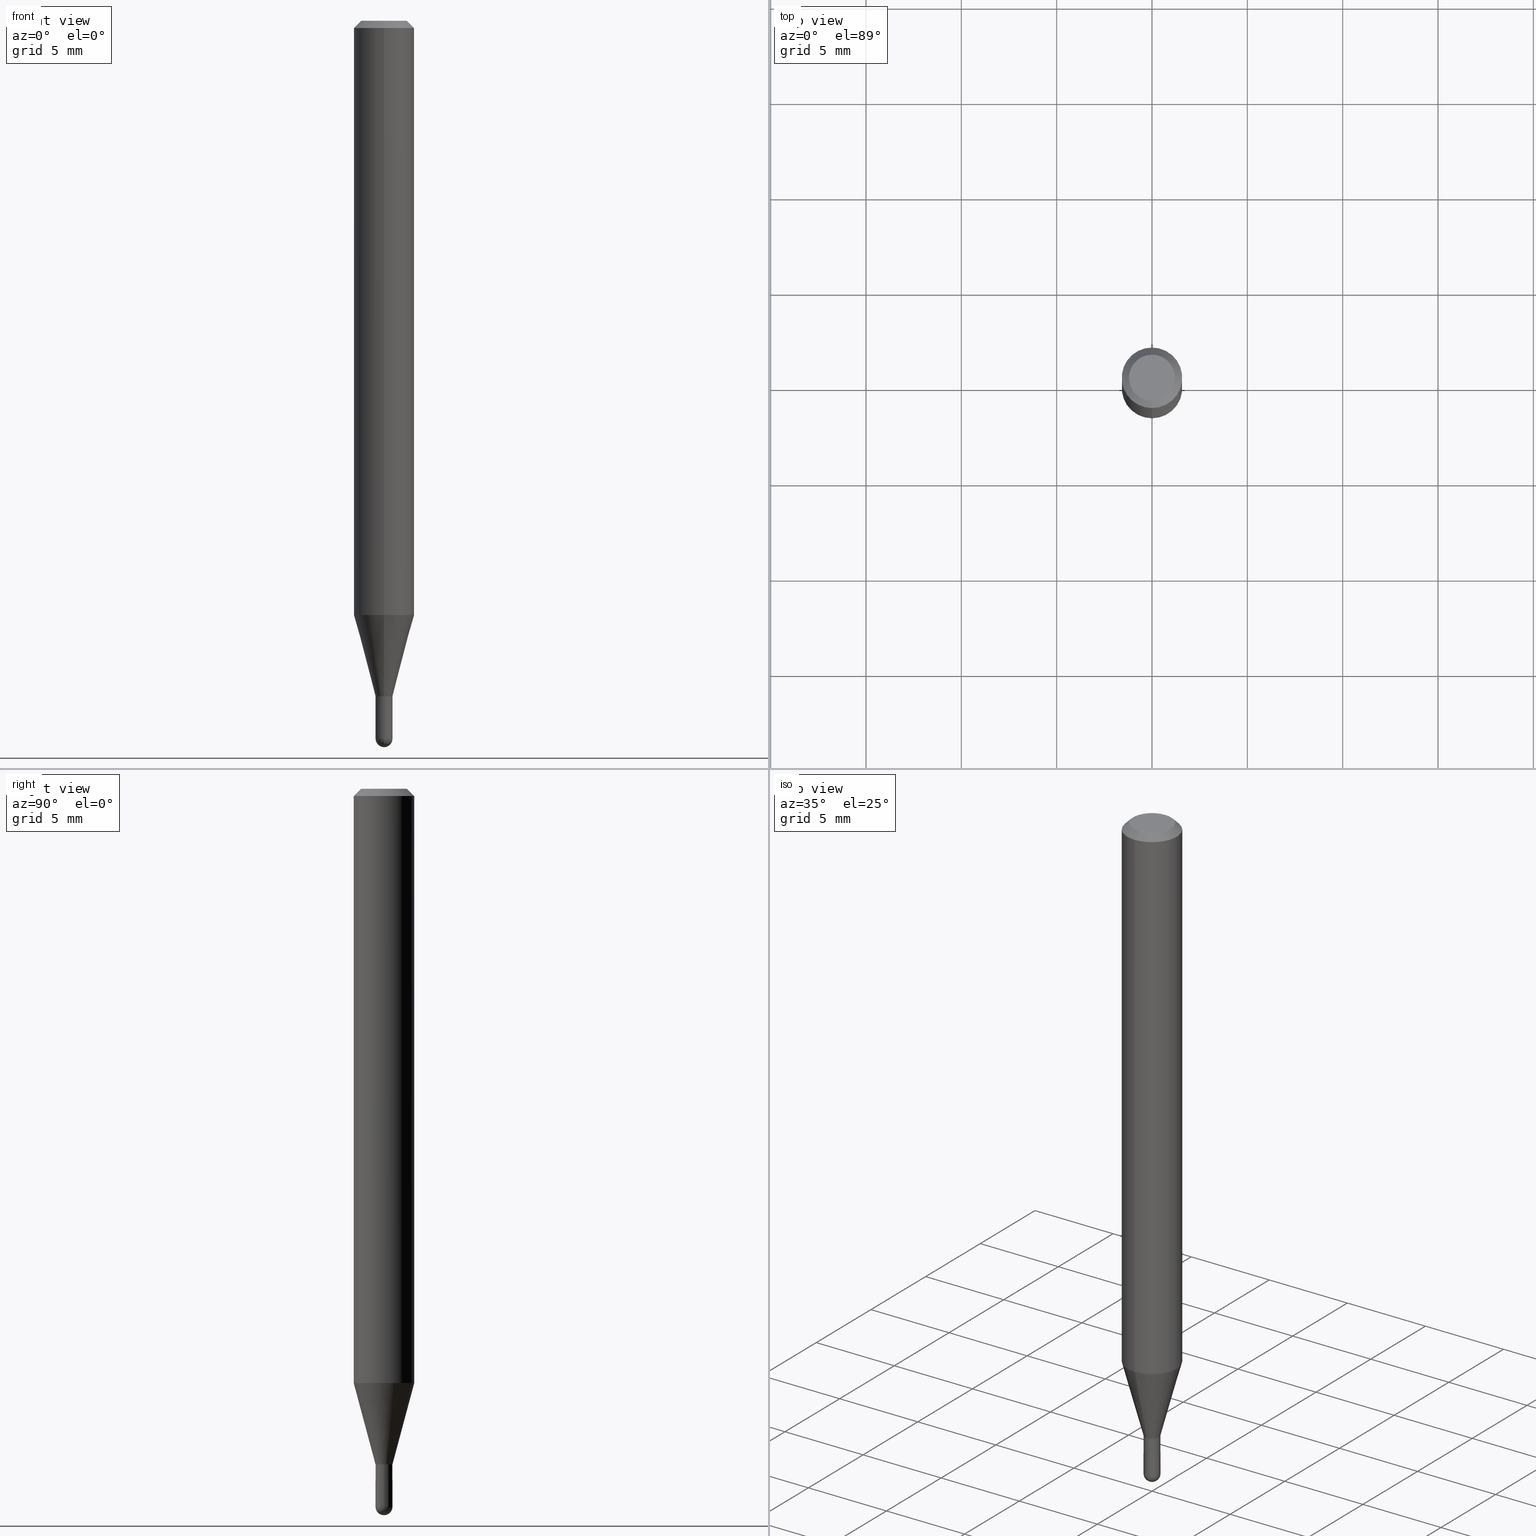
[diagram: canonical four-view strip — front | top / right | iso, engineering-drawing reading convention]
A machine part, canonical four-view strip (front | top / right | iso — engineering-drawing reading convention). The complete STEP part file that produces these views, byte-faithful:
ISO-10303-21;
HEADER;
FILE_DESCRIPTION (( 'STEP AP203' ),
    '1' );
FILE_NAME ('01458.STEP',
    '2024-03-07T21:09:51',
    ( '' ),
    ( '' ),
    'SwSTEP 2.0',
    'SolidWorks 2023',
    '' );
FILE_SCHEMA (( 'CONFIG_CONTROL_DESIGN' ));
ENDSEC;

DATA;
#1 = EDGE_LOOP ( 'NONE', ( #16, #333, #119, #501 ) ) ;
#2 = CARTESIAN_POINT ( 'NONE',  ( 4.364351673553919652E-16, 0.06249999999999995143, -0.01500000000000022669 ) ) ;
#3 = EDGE_CURVE ( 'NONE', #283, #385, #195, .T. ) ;
#4 = CARTESIAN_POINT ( 'NONE',  ( 1.207922650792511585E-16, 0.01699999999999513012, -1.395000000000000018 ) ) ;
#5 = DIRECTION ( 'NONE',  ( -6.982962677686266711E-15, -1.000000000000000000, 0.000000000000000000 ) ) ;
#6 = EDGE_LOOP ( 'NONE', ( #383, #317 ) ) ;
#7 = EDGE_LOOP ( 'NONE', ( #244, #122 ) ) ;
#8 = DIRECTION ( 'NONE',  ( 6.982962677686265922E-15, 1.000000000000000000, -3.483106191921935554E-15 ) ) ;
#9 = EDGE_CURVE ( 'NONE', #385, #140, #237, .T. ) ;
#10 = VERTEX_POINT ( 'NONE', #470 ) ;
#11 = CARTESIAN_POINT ( 'NONE',  ( 1.243449787580543003E-16, 0.01749999999999489464, -1.482500000000000373 ) ) ;
#12 = FACE_OUTER_BOUND ( 'NONE', #346, .T. ) ;
#13 = CARTESIAN_POINT ( 'NONE',  ( 1.225686219186511394E-16, 0.01699999999999513012, -1.395000000000000018 ) ) ;
#14 = CIRCLE ( 'NONE', #217, 0.06250000000000000000 ) ;
#15 = DIRECTION ( 'NONE',  ( -2.445468806185136597E-29, 3.491481338843145583E-15, 1.000000000000000000 ) ) ;
#16 = ORIENTED_EDGE ( 'NONE', *, *, #50, .F. ) ;
#17 = AXIS2_PLACEMENT_3D ( 'NONE', #47, #314, #55 ) ;
#18 = DIRECTION ( 'NONE',  ( -2.445457948483658713E-29, 3.491496887689643941E-15, 1.000000000000000000 ) ) ;
#19 = CARTESIAN_POINT ( 'NONE',  ( 2.842170943040719798E-16, 0.01749999999999505770, -1.395000000000000018 ) ) ;
#20 = DIRECTION ( 'NONE',  ( 1.000000000000000000, -7.105427357601001070E-15, 4.926315508542082329E-29 ) ) ;
#21 = LOCAL_TIME ( 16, 9, 51.00000000000000000, #310 ) ;
#22 = DIRECTION ( 'NONE',  ( -6.982962677686265133E-15, -1.000000000000000000, 0.000000000000000000 ) ) ;
#23 = EDGE_CURVE ( 'NONE', #425, #508, #240, .T. ) ;
#24 = EDGE_LOOP ( 'NONE', ( #313, #266, #479, #214 ) ) ;
#25 = CARTESIAN_POINT ( 'NONE',  ( 3.623910964163401181E-29, -5.178264216733472029E-15, -1.482500000000000151 ) ) ;
#26 = CARTESIAN_POINT ( 'NONE',  ( -4.364351673553912750E-16, -0.06250000000000005551, -0.01499999999999979128 ) ) ;
#27 = PRODUCT ( '01458', '01458', '', ( #197 ) ) ;
#28 = CIRCLE ( 'NONE', #213, 0.01749999999999992534 ) ;
#29 = APPLICATION_CONTEXT ( 'configuration controlled 3d designs of mechanical parts and assemblies' ) ;
#30 = DATE_TIME_ROLE ( 'creation_date' ) ;
#31 = EDGE_LOOP ( 'NONE', ( #85, #138 ) ) ;
#32 = EDGE_CURVE ( 'NONE', #320, #425, #28, .T. ) ;
#33 = ORIENTED_EDGE ( 'NONE', *, *, #431, .F. ) ;
#34 = PERSON_AND_ORGANIZATION ( #279, #79 ) ;
#35 = CIRCLE ( 'NONE', #441, 0.01750000000000000167 ) ;
#36 = EDGE_LOOP ( 'NONE', ( #308, #70, #286, #113, #73 ) ) ;
#37 = APPROVAL_DATE_TIME ( #387, #483 ) ;
#38 = DATE_AND_TIME ( #506, #147 ) ;
#39 = ADVANCED_FACE ( 'NONE', ( #312 ), #311, .T. ) ;
#40 = ORIENTED_EDGE ( 'NONE', *, *, #276, .T. ) ;
#41 = CARTESIAN_POINT ( 'NONE',  ( 1.243449787580511203E-16, 0.01749999999999505770, -1.395000000000000018 ) ) ;
#42 = ORIENTED_EDGE ( 'NONE', *, *, #32, .F. ) ;
#43 = DIRECTION ( 'NONE',  ( -6.982962677686266711E-15, -1.000000000000000000, 3.491496887689644335E-15 ) ) ;
#44 = CIRCLE ( 'NONE', #104, 0.01750000000000000167 ) ;
#45 = EDGE_CURVE ( 'NONE', #163, #145, #179, .T. ) ;
#46 = DIRECTION ( 'NONE',  ( 1.000000000000000000, -6.982962677686248567E-15, 0.000000000000000000 ) ) ;
#47 = CARTESIAN_POINT ( 'NONE',  ( 3.668186922725490346E-31, -5.237245331534468844E-17, -0.01500000000000000812 ) ) ;
#48 = EDGE_LOOP ( 'NONE', ( #175, #322, #76, #429 ) ) ;
#49 = LINE ( 'NONE', #360, #328 ) ;
#50 = EDGE_CURVE ( 'NONE', #385, #283, #475, .T. ) ;
#51 = CARTESIAN_POINT ( 'NONE',  ( 3.668186922725490346E-31, -5.237245331534468844E-17, -0.01500000000000000812 ) ) ;
#52 = LOCAL_TIME ( 16, 9, 51.00000000000000000, #232 ) ;
#53 = DIRECTION ( 'NONE',  ( -2.445468806185136597E-29, 3.491481338843145583E-15, 1.000000000000000000 ) ) ;
#54 = DIRECTION ( 'NONE',  ( -6.982962677686265922E-15, -1.000000000000000000, 3.491496887689643941E-15 ) ) ;
#55 = DIRECTION ( 'NONE',  ( 6.982962677686265922E-15, 1.000000000000000000, -3.483106191921935554E-15 ) ) ;
#56 = CIRCLE ( 'NONE', #364, 0.06250000000000000000 ) ;
#57 = DIRECTION ( 'NONE',  ( -2.445468806185136877E-29, 3.491481338843145188E-15, 1.000000000000000000 ) ) ;
#58 = DIRECTION ( 'NONE',  ( -2.445457948483658713E-29, 3.491496887689643941E-15, 1.000000000000000000 ) ) ;
#59 = CIRCLE ( 'NONE', #82, 0.01749999999999992534 ) ;
#60 = EDGE_CURVE ( 'NONE', #10, #199, #35, .T. ) ;
#61 = CYLINDRICAL_SURFACE ( 'NONE', #128, 0.06250000000000000000 ) ;
#62 = AXIS2_PLACEMENT_3D ( 'NONE', #330, #187, #143 ) ;
#63 = DIRECTION ( 'NONE',  ( -2.445457948483658713E-29, 3.491496887689643941E-15, 1.000000000000000000 ) ) ;
#64 = CARTESIAN_POINT ( 'NONE',  ( -1.222018468594739172E-16, -0.01750000000000525094, -1.482500000000000373 ) ) ;
#65 = FACE_OUTER_BOUND ( 'NONE', #234, .T. ) ;
#66 = ADVANCED_FACE ( 'NONE', ( #206 ), #350, .T. ) ;
#67 = ORIENTED_EDGE ( 'NONE', *, *, #413, .F. ) ;
#68 = FACE_OUTER_BOUND ( 'NONE', #48, .T. ) ;
#69 = COORDINATED_UNIVERSAL_TIME_OFFSET ( 5, 0, .BEHIND. ) ;
#70 = ORIENTED_EDGE ( 'NONE', *, *, #309, .T. ) ;
#71 = VECTOR ( 'NONE', #365, 39.37007874015748143 ) ;
#72 = DATE_TIME_ROLE ( 'classification_date' ) ;
#73 = ORIENTED_EDGE ( 'NONE', *, *, #60, .F. ) ;
#74 = DIRECTION ( 'NONE',  ( 1.000000000000000000, 0.000000000000000000, 0.000000000000000000 ) ) ;
#75 = APPROVAL_ROLE ( '' ) ;
#76 = ORIENTED_EDGE ( 'NONE', *, *, #229, .F. ) ;
#77 = CC_DESIGN_DATE_AND_TIME_ASSIGNMENT ( #38, #30, ( #165 ) ) ;
#78 = VERTEX_POINT ( 'NONE', #242 ) ;
#79 = ORGANIZATION ( 'UNSPECIFIED', 'UNSPECIFIED', '' ) ;
#80 = ADVANCED_FACE ( 'NONE', ( #92 ), #204, .T. ) ;
#81 = ORIENTED_EDGE ( 'NONE', *, *, #297, .T. ) ;
#82 = AXIS2_PLACEMENT_3D ( 'NONE', #304, #371, #188 ) ;
#83 = VERTEX_POINT ( 'NONE', #327 ) ;
#84 = DIRECTION ( 'NONE',  ( 1.000000000000000000, -6.982962677686248567E-15, 0.000000000000000000 ) ) ;
#85 = ORIENTED_EDGE ( 'NONE', *, *, #3, .T. ) ;
#86 = AXIS2_PLACEMENT_3D ( 'NONE', #452, #109, #262 ) ;
#87 = CARTESIAN_POINT ( 'NONE',  ( 3.411413838134704016E-29, -4.870638158327054133E-15, -1.395000000000000018 ) ) ;
#88 = VERTEX_POINT ( 'NONE', #293 ) ;
#89 = CARTESIAN_POINT ( 'NONE',  ( 3.625407505169465812E-29, -5.176121084834964763E-15, -1.482500000000000373 ) ) ;
#90 = EDGE_CURVE ( 'NONE', #305, #140, #449, .T. ) ;
#91 = CARTESIAN_POINT ( 'NONE',  ( 3.668186922725490346E-31, -5.237245331534468844E-17, -0.01500000000000000812 ) ) ;
#92 = FACE_OUTER_BOUND ( 'NONE', #460, .T. ) ;
#93 = CIRCLE ( 'NONE', #184, 0.01750000000000000167 ) ;
#94 = VECTOR ( 'NONE', #444, 39.37007874015748143 ) ;
#95 = AXIS2_PLACEMENT_3D ( 'NONE', #478, #289, #482 ) ;
#96 = APPLICATION_CONTEXT ( 'configuration controlled 3d designs of mechanical parts and assemblies' ) ;
#97 = FACE_OUTER_BOUND ( 'NONE', #367, .T. ) ;
#98 = LINE ( 'NONE', #256, #511 ) ;
#99 = CARTESIAN_POINT ( 'NONE',  ( -4.364351673553916201E-16, -0.06250000000000000000, 2.182185554806027463E-16 ) ) ;
#100 = EDGE_CURVE ( 'NONE', #425, #320, #59, .T. ) ;
#101 = FACE_OUTER_BOUND ( 'NONE', #24, .T. ) ;
#102 = VECTOR ( 'NONE', #111, 39.37007874015748143 ) ;
#103 = CARTESIAN_POINT ( 'NONE',  ( 0.000000000000000000, 0.000000000000000000, 0.000000000000000000 ) ) ;
#104 = AXIS2_PLACEMENT_3D ( 'NONE', #141, #53, #442 ) ;
#105 = DIRECTION ( 'NONE',  ( 1.000000000000000000, -6.982962677686248567E-15, 0.000000000000000000 ) ) ;
#106 = EDGE_CURVE ( 'NONE', #88, #78, #457, .T. ) ;
#107 = DIRECTION ( 'NONE',  ( -1.000000000000000000, 6.982962677686265922E-15, -4.876176775795935793E-29 ) ) ;
#108 = AXIS2_PLACEMENT_3D ( 'NONE', #131, #249, #284 ) ;
#109 = DIRECTION ( 'NONE',  ( -2.445457948483658713E-29, 3.491496887689643941E-15, 1.000000000000000000 ) ) ;
#110 = PERSON_AND_ORGANIZATION_ROLE ( 'creator' ) ;
#111 = DIRECTION ( 'NONE',  ( -4.937700262164674260E-15, -0.7071067811865632269, 0.7071067811865319186 ) ) ;
#112 = AXIS2_PLACEMENT_3D ( 'NONE', #471, #169, #43 ) ;
#113 = ORIENTED_EDGE ( 'NONE', *, *, #435, .T. ) ;
#114 = DATE_AND_TIME ( #345, #52 ) ;
#115 = VERTEX_POINT ( 'NONE', #267 ) ;
#116 = LOCAL_TIME ( 16, 9, 51.00000000000000000, #424 ) ;
#117 = DIRECTION ( 'NONE',  ( -6.982962677686265922E-15, -1.000000000000000000, 0.000000000000000000 ) ) ;
#118 = CALENDAR_DATE ( 2024, 7, 3 ) ;
#119 = ORIENTED_EDGE ( 'NONE', *, *, #254, .T. ) ;
#120 = ADVANCED_FACE ( 'NONE', ( #264 ), #370, .F. ) ;
#121 = ORIENTED_EDGE ( 'NONE', *, *, #297, .F. ) ;
#122 = ORIENTED_EDGE ( 'NONE', *, *, #60, .T. ) ;
#123 = APPROVAL_DATE_TIME ( #494, #127 ) ;
#124 = CARTESIAN_POINT ( 'NONE',  ( 3.623910964163401181E-29, -5.178264216733472029E-15, -1.482500000000000151 ) ) ;
#125 = ORIENTED_EDGE ( 'NONE', *, *, #334, .F. ) ;
#126 = MANIFOLD_SOLID_BREP ( 'Body-Move/Copy2[1]', #392 ) ;
#127 = APPROVAL ( #164, 'UNSPECIFIED' ) ;
#128 = AXIS2_PLACEMENT_3D ( 'NONE', #225, #324, #54 ) ;
#129 = CARTESIAN_POINT ( 'NONE',  ( -3.773273898774340269E-16, -0.04749999999999999362, 1.569865211436356637E-16 ) ) ;
#130 = CARTESIAN_POINT ( 'NONE',  ( 3.411428984628265351E-29, -4.870616467686188228E-15, -1.395000000000000018 ) ) ;
#131 = CARTESIAN_POINT ( 'NONE',  ( 0.000000000000000000, 0.000000000000000000, 0.000000000000000000 ) ) ;
#132 = DIRECTION ( 'NONE',  ( -2.445457948483658713E-29, 3.491496887689643941E-15, 1.000000000000000000 ) ) ;
#133 = VERTEX_POINT ( 'NONE', #192 ) ;
#134 = FACE_OUTER_BOUND ( 'NONE', #36, .T. ) ;
#135 = FACE_OUTER_BOUND ( 'NONE', #271, .T. ) ;
#136 = AXIS2_PLACEMENT_3D ( 'NONE', #326, #63, #301 ) ;
#137 = CC_DESIGN_PERSON_AND_ORGANIZATION_ASSIGNMENT ( #263, #228, ( #219 ) ) ;
#138 = ORIENTED_EDGE ( 'NONE', *, *, #50, .T. ) ;
#139 = FACE_OUTER_BOUND ( 'NONE', #355, .T. ) ;
#140 = VERTEX_POINT ( 'NONE', #26 ) ;
#141 = CARTESIAN_POINT ( 'NONE',  ( 3.625407505169465812E-29, -5.176121084834964763E-15, -1.482500000000000373 ) ) ;
#142 = CIRCLE ( 'NONE', #415, 0.01750000000000014738 ) ;
#143 = DIRECTION ( 'NONE',  ( -6.982962677686265922E-15, -1.000000000000000000, 3.483106191921935554E-15 ) ) ;
#144 = DIRECTION ( 'NONE',  ( 1.000000000000000000, -6.982962677686248567E-15, 0.000000000000000000 ) ) ;
#145 = VERTEX_POINT ( 'NONE', #183 ) ;
#146 = EDGE_CURVE ( 'NONE', #300, #10, #340, .T. ) ;
#147 = LOCAL_TIME ( 16, 9, 51.00000000000000000, #69 ) ;
#148 = AXIS2_PLACEMENT_3D ( 'NONE', #171, #215, #323 ) ;
#149 = DIRECTION ( 'NONE',  ( 7.105427357601000281E-15, 1.000000000000000000, 0.000000000000000000 ) ) ;
#150 = DIRECTION ( 'NONE',  ( -6.982962677686265922E-15, -1.000000000000000000, 0.000000000000000000 ) ) ;
#151 = DIRECTION ( 'NONE',  ( -2.445457948483658713E-29, 3.491496887689643941E-15, 1.000000000000000000 ) ) ;
#152 = DIRECTION ( 'NONE',  ( -6.982962677686266711E-15, -1.000000000000000000, 0.000000000000000000 ) ) ;
#153 = DIRECTION ( 'NONE',  ( 5.024295867788190974E-15, 0.7071067811865681119, 0.7071067811865270336 ) ) ;
#154 = CIRCLE ( 'NONE', #389, 0.01750000000000000167 ) ;
#155 = AXIS2_PLACEMENT_3D ( 'NONE', #292, #362, #182 ) ;
#156 = SECURITY_CLASSIFICATION_LEVEL ( 'unclassified' ) ;
#157 = DIRECTION ( 'NONE',  ( -6.982962677686266711E-15, -1.000000000000000000, 3.491496887689644335E-15 ) ) ;
#158 = PERSON_AND_ORGANIZATION ( #279, #79 ) ;
#159 = EDGE_CURVE ( 'NONE', #115, #238, #142, .T. ) ;
#160 = APPROVAL_STATUS ( 'not_yet_approved' ) ;
#161 = AXIS2_PLACEMENT_3D ( 'NONE', #259, #211, #302 ) ;
#162 =( NAMED_UNIT ( * ) PLANE_ANGLE_UNIT ( ) SI_UNIT ( $, .RADIAN. ) );
#163 = VERTEX_POINT ( 'NONE', #64 ) ;
#164 = APPROVAL_STATUS ( 'not_yet_approved' ) ;
#165 = PRODUCT_DEFINITION ( 'UNKNOWN', '', #219, #498 ) ;
#166 = DIRECTION ( 'NONE',  ( 1.000000000000000000, -6.982962677686265922E-15, 4.876176775795936353E-29 ) ) ;
#167 = LOCAL_TIME ( 16, 9, 51.00000000000000000, #496 ) ;
#168 = LINE ( 'NONE', #4, #432 ) ;
#169 = DIRECTION ( 'NONE',  ( -2.445457948483658713E-29, 3.491496887689643941E-15, 1.000000000000000000 ) ) ;
#170 = DIRECTION ( 'NONE',  ( -2.445457948483658433E-29, 3.491496887689643941E-15, 1.000000000000000000 ) ) ;
#171 = CARTESIAN_POINT ( 'NONE',  ( 3.316907271900976096E-16, 0.04749999999999999362, -1.702758926760692950E-16 ) ) ;
#172 = EDGE_CURVE ( 'NONE', #272, #88, #241, .T. ) ;
#173 = CARTESIAN_POINT ( 'NONE',  ( 3.000718039116578967E-29, -4.284268188257384989E-15, -1.227057713659405636 ) ) ;
#174 = AXIS2_PLACEMENT_3D ( 'NONE', #492, #375, #105 ) ;
#175 = ORIENTED_EDGE ( 'NONE', *, *, #32, .T. ) ;
#176 = DIRECTION ( 'NONE',  ( -6.982962677686265922E-15, -1.000000000000000000, 3.483106191921935554E-15 ) ) ;
#177 = EDGE_CURVE ( 'NONE', #238, #300, #44, .T. ) ;
#178 = CARTESIAN_POINT ( 'NONE',  ( 3.410191109160462310E-29, -4.868892409883209616E-15, -1.394500000000000073 ) ) ;
#179 = CIRCLE ( 'NONE', #319, 0.01750000000000000167 ) ;
#180 = DIRECTION ( 'NONE',  ( -6.982962677686265922E-15, -1.000000000000000000, 0.000000000000000000 ) ) ;
#181 = ORIENTED_EDGE ( 'NONE', *, *, #100, .T. ) ;
#182 = DIRECTION ( 'NONE',  ( -6.982962677686265922E-15, -1.000000000000000000, 3.491496887689643941E-15 ) ) ;
#183 = CARTESIAN_POINT ( 'NONE',  ( 0.01750000000000000167, -5.145570623120085689E-15, -1.482500000000000373 ) ) ;
#184 = AXIS2_PLACEMENT_3D ( 'NONE', #89, #247, #46 ) ;
#185 = CC_DESIGN_SECURITY_CLASSIFICATION ( #493, ( #219 ) ) ;
#186 = CARTESIAN_POINT ( 'NONE',  ( -0.01750000000000000167, -4.899023797502559247E-15, -1.482500000000000373 ) ) ;
#187 = DIRECTION ( 'NONE',  ( -2.445457948483658713E-29, 3.491496887689643941E-15, 1.000000000000000000 ) ) ;
#188 = DIRECTION ( 'NONE',  ( -6.982962677686266711E-15, -1.000000000000000000, 0.000000000000000000 ) ) ;
#189 = CC_DESIGN_PERSON_AND_ORGANIZATION_ASSIGNMENT ( #504, #381, ( #493 ) ) ;
#190 = DIRECTION ( 'NONE',  ( -2.445457948483658713E-29, 3.491496887689643941E-15, 1.000000000000000000 ) ) ;
#191 = APPROVAL_ROLE ( '' ) ;
#192 = CARTESIAN_POINT ( 'NONE',  ( 4.440892098500928887E-16, 0.06249999999999995837, -0.01500000000000022669 ) ) ;
#193 = ORIENTED_EDGE ( 'NONE', *, *, #435, .F. ) ;
#194 = EDGE_CURVE ( 'NONE', #145, #238, #93, .T. ) ;
#195 = CIRCLE ( 'NONE', #427, 0.04749999999999999362 ) ;
#196 = ORIENTED_EDGE ( 'NONE', *, *, #9, .F. ) ;
#197 = MECHANICAL_CONTEXT ( 'NONE', #96, 'mechanical' ) ;
#198 = CARTESIAN_POINT ( 'NONE',  ( 2.166573282956153108E-46, -3.093319956322892712E-32, -8.859581021622424981E-18 ) ) ;
#199 = VERTEX_POINT ( 'NONE', #216 ) ;
#200 = AXIS2_PLACEMENT_3D ( 'NONE', #25, #455, #22 ) ;
#201 = EDGE_CURVE ( 'NONE', #320, #78, #49, .T. ) ;
#202 = EDGE_LOOP ( 'NONE', ( #275, #397, #348, #434 ) ) ;
#203 = CARTESIAN_POINT ( 'NONE',  ( 3.411413838134704016E-29, -4.870638158327054133E-15, -1.395000000000000018 ) ) ;
#204 = CONICAL_SURFACE ( 'NONE', #223, 0.01700000000000000122, 0.7853981633974739252 ) ;
#205 = ORIENTED_EDGE ( 'NONE', *, *, #343, .T. ) ;
#206 = FACE_OUTER_BOUND ( 'NONE', #505, .T. ) ;
#207 = DIRECTION ( 'NONE',  ( -2.445457948483658713E-29, 3.491496887689643941E-15, 1.000000000000000000 ) ) ;
#208 = CIRCLE ( 'NONE', #62, 0.06250000000000000000 ) ;
#209 = CARTESIAN_POINT ( 'NONE',  ( 0.000000000000000000, 0.000000000000000000, 0.000000000000000000 ) ) ;
#210 = ORIENTED_EDGE ( 'NONE', *, *, #309, .F. ) ;
#211 = DIRECTION ( 'NONE',  ( -2.445457948483658713E-29, 3.491496887689643941E-15, 1.000000000000000000 ) ) ;
#212 = EDGE_CURVE ( 'NONE', #88, #272, #394, .T. ) ;
#213 = AXIS2_PLACEMENT_3D ( 'NONE', #203, #433, #5 ) ;
#214 = ORIENTED_EDGE ( 'NONE', *, *, #90, .F. ) ;
#215 = DIRECTION ( 'NONE',  ( 2.445457948483658433E-29, -3.491496887689643941E-15, -1.000000000000000000 ) ) ;
#216 = CARTESIAN_POINT ( 'NONE',  ( 0.01750000000000000167, -4.992818314545698211E-15, -1.395000000000000018 ) ) ;
#217 = AXIS2_PLACEMENT_3D ( 'NONE', #51, #474, #176 ) ;
#218 = CYLINDRICAL_SURFACE ( 'NONE', #464, 0.01750000000000000167 ) ;
#219 = PRODUCT_DEFINITION_FORMATION_WITH_SPECIFIED_SOURCE ( 'ANY', '', #27, .NOT_KNOWN. ) ;
#220 = ORIENTED_EDGE ( 'NONE', *, *, #100, .F. ) ;
#221 = ADVANCED_FACE ( 'NONE', ( #396 ), #356, .F. ) ;
#222 = DIRECTION ( 'NONE',  ( -6.982962677686265922E-15, -1.000000000000000000, 4.370956789862821150E-15 ) ) ;
#223 = AXIS2_PLACEMENT_3D ( 'NONE', #251, #403, #180 ) ;
#224 = PLANE ( 'NONE',  #337 ) ;
#225 = CARTESIAN_POINT ( 'NONE',  ( 0.000000000000000000, 0.000000000000000000, 0.000000000000000000 ) ) ;
#226 = ADVANCED_FACE ( 'NONE', ( #139 ), #341, .T. ) ;
#227 = EDGE_LOOP ( 'NONE', ( #231, #81, #210, #466 ) ) ;
#228 = PERSON_AND_ORGANIZATION_ROLE ( 'creator' ) ;
#229 = EDGE_CURVE ( 'NONE', #305, #508, #56, .T. ) ;
#230 = AXIS2_PLACEMENT_3D ( 'NONE', #277, #273, #74 ) ;
#231 = ORIENTED_EDGE ( 'NONE', *, *, #159, .F. ) ;
#232 = COORDINATED_UNIVERSAL_TIME_OFFSET ( 5, 0, .BEHIND. ) ;
#233 = CARTESIAN_POINT ( 'NONE',  ( 3.410191109160462310E-29, -4.868892409883209616E-15, -1.394500000000000073 ) ) ;
#234 = EDGE_LOOP ( 'NONE', ( #510, #181, #500, #125 ) ) ;
#235 = PERSON_AND_ORGANIZATION ( #279, #79 ) ;
#236 = AXIS2_PLACEMENT_3D ( 'NONE', #402, #451, #484 ) ;
#237 = LINE ( 'NONE', #509, #378 ) ;
#238 = VERTEX_POINT ( 'NONE', #11 ) ;
#239 = DIRECTION ( 'NONE',  ( -2.445457948483658713E-29, 3.491496887689643941E-15, 1.000000000000000000 ) ) ;
#240 = LINE ( 'NONE', #41, #246 ) ;
#241 = CIRCLE ( 'NONE', #282, 0.01700000000000000122 ) ;
#242 = CARTESIAN_POINT ( 'NONE',  ( -1.222018468594754457E-16, -0.01750000000000485542, -1.394500000000000073 ) ) ;
#243 = ADVANCED_FACE ( 'NONE', ( #134 ), #400, .T. ) ;
#244 = ORIENTED_EDGE ( 'NONE', *, *, #347, .T. ) ;
#245 = CARTESIAN_POINT ( 'NONE',  ( 3.840629472727447874E-16, 0.04749999999999999362, -1.747056831868805136E-16 ) ) ;
#246 = VECTOR ( 'NONE', #406, 39.37007874015748143 ) ;
#247 = DIRECTION ( 'NONE',  ( -2.445468806185136597E-29, 3.491481338843145583E-15, 1.000000000000000000 ) ) ;
#248 = CC_DESIGN_PERSON_AND_ORGANIZATION_ASSIGNMENT ( #269, #423, ( #27 ) ) ;
#249 = DIRECTION ( 'NONE',  ( -2.445468806185136597E-29, 3.491481338843145583E-15, 1.000000000000000000 ) ) ;
#250 = CYLINDRICAL_SURFACE ( 'NONE', #155, 0.06250000000000000000 ) ;
#251 = CARTESIAN_POINT ( 'NONE',  ( 3.411413838134704016E-29, -4.870638158327054133E-15, -1.395000000000000018 ) ) ;
#252 = CONICAL_SURFACE ( 'NONE', #236, 0.01700000000000000122, 0.7853981633974739252 ) ;
#253 = CYLINDRICAL_SURFACE ( 'NONE', #86, 0.01749999999999992534 ) ;
#254 = EDGE_CURVE ( 'NONE', #140, #133, #14, .T. ) ;
#255 = CARTESIAN_POINT ( 'NONE',  ( -4.364351673553617913E-16, -0.06250000000000430211, -1.227057713659405414 ) ) ;
#256 = CARTESIAN_POINT ( 'NONE',  ( 0.01750000000000000167, -1.222018468595096625E-16, 8.533309357642889039E-31 ) ) ;
#257 = DIRECTION ( 'NONE',  ( -6.982962677686266711E-15, -1.000000000000000000, 3.491496887689644335E-15 ) ) ;
#258 = CIRCLE ( 'NONE', #161, 0.06250000000000000000 ) ;
#259 = CARTESIAN_POINT ( 'NONE',  ( 3.000718039116578967E-29, -4.284268188257384989E-15, -1.227057713659405636 ) ) ;
#260 = DIRECTION ( 'NONE',  ( 2.438088387897960049E-29, -3.491481338843145188E-15, -1.000000000000000000 ) ) ;
#261 = DATE_AND_TIME ( #118, #116 ) ;
#262 = DIRECTION ( 'NONE',  ( -6.982962677686266711E-15, -1.000000000000000000, 3.491496887689644335E-15 ) ) ;
#263 = PERSON_AND_ORGANIZATION ( #279, #79 ) ;
#264 = FACE_OUTER_BOUND ( 'NONE', #281, .T. ) ;
#265 = EDGE_CURVE ( 'NONE', #283, #133, #288, .T. ) ;
#266 = ORIENTED_EDGE ( 'NONE', *, *, #368, .T. ) ;
#267 = CARTESIAN_POINT ( 'NONE',  ( 3.665958397768609070E-29, -5.240436706112481836E-15, -1.500000000000000222 ) ) ;
#268 = AXIS2_PLACEMENT_3D ( 'NONE', #87, #170, #318 ) ;
#269 = PERSON_AND_ORGANIZATION ( #279, #79 ) ;
#270 = APPROVAL_DATE_TIME ( #261, #495 ) ;
#271 = EDGE_LOOP ( 'NONE', ( #436, #335, #422, #193, #465 ) ) ;
#272 = VERTEX_POINT ( 'NONE', #13 ) ;
#273 = DIRECTION ( 'NONE',  ( 0.000000000000000000, 0.000000000000000000, 1.000000000000000000 ) ) ;
#274 = AXIS2_PLACEMENT_3D ( 'NONE', #124, #445, #512 ) ;
#275 = ORIENTED_EDGE ( 'NONE', *, *, #212, .T. ) ;
#276 = EDGE_CURVE ( 'NONE', #83, #78, #487, .T. ) ;
#277 = CARTESIAN_POINT ( 'NONE',  ( 0.000000000000000000, 0.000000000000000000, 0.000000000000000000 ) ) ;
#278 =( GEOMETRIC_REPRESENTATION_CONTEXT ( 3 ) GLOBAL_UNCERTAINTY_ASSIGNED_CONTEXT ( ( #404 ) ) GLOBAL_UNIT_ASSIGNED_CONTEXT ( ( #502, #162, #339 ) ) REPRESENTATION_CONTEXT ( 'NONE', 'WORKASPACE' ) );
#279 = PERSON ( 'UNSPECIFIED', 'UNSPECIFIED', 'UNSPECIFIED', ('UNSPECIFIED'), ('UNSPECIFIED'), ('UNSPECIFIED') ) ;
#280 = ADVANCED_FACE ( 'NONE', ( #438 ), #291, .F. ) ;
#281 = EDGE_LOOP ( 'NONE', ( #33, #42, #468, #205 ) ) ;
#282 = AXIS2_PLACEMENT_3D ( 'NONE', #296, #239, #117 ) ;
#283 = VERTEX_POINT ( 'NONE', #245 ) ;
#284 = DIRECTION ( 'NONE',  ( 1.000000000000000000, -6.982962677686265922E-15, 4.876176775795936353E-29 ) ) ;
#285 = VECTOR ( 'NONE', #132, 39.37007874015748143 ) ;
#286 = ORIENTED_EDGE ( 'NONE', *, *, #45, .T. ) ;
#287 = EDGE_CURVE ( 'NONE', #320, #305, #398, .T. ) ;
#288 = LINE ( 'NONE', #2, #71 ) ;
#289 = DIRECTION ( 'NONE',  ( -2.445457948483658713E-29, 3.491496887689643941E-15, 1.000000000000000000 ) ) ;
#290 = FACE_OUTER_BOUND ( 'NONE', #202, .T. ) ;
#291 = PLANE ( 'NONE',  #268 ) ;
#292 = CARTESIAN_POINT ( 'NONE',  ( 0.000000000000000000, 0.000000000000000000, 0.000000000000000000 ) ) ;
#293 = CARTESIAN_POINT ( 'NONE',  ( -1.187103655206324139E-16, -0.01700000000000487232, -1.395000000000000018 ) ) ;
#294 = AXIS2_PLACEMENT_3D ( 'NONE', #332, #408, #150 ) ;
#295 = CARTESIAN_POINT ( 'NONE',  ( 1.222018468595437807E-16, 0.01749999999999513056, -1.395000000000000018 ) ) ;
#296 = CARTESIAN_POINT ( 'NONE',  ( 3.411413838134704016E-29, -4.870638158327054133E-15, -1.395000000000000018 ) ) ;
#297 = EDGE_CURVE ( 'NONE', #115, #163, #373, .T. ) ;
#298 = CLOSED_SHELL ( 'NONE', ( #303, #476, #39, #467, #329, #463, #491, #226, #221, #280, #80, #120 ) ) ;
#299 = CARTESIAN_POINT ( 'NONE',  ( 4.440892098500924943E-16, 0.06249999999999569789, -1.227057713659405858 ) ) ;
#300 = VERTEX_POINT ( 'NONE', #186 ) ;
#301 = DIRECTION ( 'NONE',  ( -6.982962677686266711E-15, -1.000000000000000000, 0.000000000000000000 ) ) ;
#302 = DIRECTION ( 'NONE',  ( -6.982962677686265922E-15, -1.000000000000000000, 4.370956789862821150E-15 ) ) ;
#303 = ADVANCED_FACE ( 'NONE', ( #97 ), #253, .F. ) ;
#304 = CARTESIAN_POINT ( 'NONE',  ( 3.411413838134704016E-29, -4.870638158327054133E-15, -1.395000000000000018 ) ) ;
#305 = VERTEX_POINT ( 'NONE', #255 ) ;
#306 = PRODUCT_DEFINITION_SHAPE ( 'NONE', 'NONE',  #165 ) ;
#307 = SHAPE_DEFINITION_REPRESENTATION ( #306, #349 ) ;
#308 = ORIENTED_EDGE ( 'NONE', *, *, #146, .F. ) ;
#309 = EDGE_CURVE ( 'NONE', #300, #163, #411, .T. ) ;
#310 = COORDINATED_UNIVERSAL_TIME_OFFSET ( 5, 0, .BEHIND. ) ;
#311 = CONICAL_SURFACE ( 'NONE', #17, 0.06250000000000000000, 0.7853981633974483900 ) ;
#312 = FACE_OUTER_BOUND ( 'NONE', #1, .T. ) ;
#313 = ORIENTED_EDGE ( 'NONE', *, *, #229, .T. ) ;
#314 = DIRECTION ( 'NONE',  ( 2.445457948483658713E-29, -3.491496887689643941E-15, -1.000000000000000000 ) ) ;
#315 = VECTOR ( 'NONE', #407, 39.37007874015748854 ) ;
#316 = ORIENTED_EDGE ( 'NONE', *, *, #201, .F. ) ;
#317 = ORIENTED_EDGE ( 'NONE', *, *, #172, .F. ) ;
#318 = DIRECTION ( 'NONE',  ( -6.982962677686265922E-15, -1.000000000000000000, 3.491496887689643941E-15 ) ) ;
#319 = AXIS2_PLACEMENT_3D ( 'NONE', #393, #486, #84 ) ;
#320 = VERTEX_POINT ( 'NONE', #379 ) ;
#321 = AXIS2_PLACEMENT_3D ( 'NONE', #369, #18, #152 ) ;
#322 = ORIENTED_EDGE ( 'NONE', *, *, #23, .T. ) ;
#323 = DIRECTION ( 'NONE',  ( 6.982962677686265922E-15, 1.000000000000000000, -3.491496887689643941E-15 ) ) ;
#324 = DIRECTION ( 'NONE',  ( -2.445457948483658713E-29, 3.491496887689643941E-15, 1.000000000000000000 ) ) ;
#325 = DIRECTION ( 'NONE',  ( -2.445457948483658713E-29, 3.491496887689643941E-15, 1.000000000000000000 ) ) ;
#326 = CARTESIAN_POINT ( 'NONE',  ( 3.411413838134704016E-29, -4.870638158327054133E-15, -1.395000000000000018 ) ) ;
#327 = CARTESIAN_POINT ( 'NONE',  ( 1.243449787580506765E-16, 0.01749999999999499872, -1.394500000000000073 ) ) ;
#328 = VECTOR ( 'NONE', #207, 39.37007874015748143 ) ;
#329 = ADVANCED_FACE ( 'NONE', ( #68 ), #503, .T. ) ;
#330 = CARTESIAN_POINT ( 'NONE',  ( 3.668186922725490346E-31, -5.237245331534468844E-17, -0.01500000000000000812 ) ) ;
#331 = APPROVAL_PERSON_ORGANIZATION ( #34, #495, #75 ) ;
#332 = CARTESIAN_POINT ( 'NONE',  ( 3.623910964163401181E-29, -5.178264216733472029E-15, -1.482500000000000151 ) ) ;
#333 = ORIENTED_EDGE ( 'NONE', *, *, #9, .T. ) ;
#334 = EDGE_CURVE ( 'NONE', #508, #305, #258, .T. ) ;
#335 = ORIENTED_EDGE ( 'NONE', *, *, #146, .T. ) ;
#336 = PERSON_AND_ORGANIZATION ( #279, #79 ) ;
#337 = AXIS2_PLACEMENT_3D ( 'NONE', #295, #260, #107 ) ;
#338 = ORIENTED_EDGE ( 'NONE', *, *, #45, .F. ) ;
#339 =( NAMED_UNIT ( * ) SI_UNIT ( $, .STERADIAN. ) SOLID_ANGLE_UNIT ( ) );
#340 = LINE ( 'NONE', #410, #399 ) ;
#341 = CONICAL_SURFACE ( 'NONE', #473, 0.06250000000000000000, 0.7853981633974483900 ) ;
#342 = ORIENTED_EDGE ( 'NONE', *, *, #265, .T. ) ;
#343 = EDGE_CURVE ( 'NONE', #78, #83, #437, .T. ) ;
#344 = ORIENTED_EDGE ( 'NONE', *, *, #413, .T. ) ;
#345 = CALENDAR_DATE ( 2024, 7, 3 ) ;
#346 = EDGE_LOOP ( 'NONE', ( #358, #412, #477, #67 ) ) ;
#347 = EDGE_CURVE ( 'NONE', #199, #10, #154, .T. ) ;
#348 = ORIENTED_EDGE ( 'NONE', *, *, #343, .F. ) ;
#349 = ADVANCED_BREP_SHAPE_REPRESENTATION ( '01458', ( #126, #458, #230 ), #278 ) ;
#350 = SPHERICAL_SURFACE ( 'NONE', #274, 0.01750000000000014738 ) ;
#351 = CC_DESIGN_APPROVAL ( #483, ( #165 ) ) ;
#352 = DIRECTION ( 'NONE',  ( 1.000000000000000000, -6.982962677686248567E-15, 0.000000000000000000 ) ) ;
#353 = DIRECTION ( 'NONE',  ( -2.445457948483658713E-29, 3.491496887689643941E-15, 1.000000000000000000 ) ) ;
#354 = DIRECTION ( 'NONE',  ( -2.445468806185136597E-29, 3.491481338843145583E-15, 1.000000000000000000 ) ) ;
#355 = EDGE_LOOP ( 'NONE', ( #196, #388, #342, #344 ) ) ;
#356 = PLANE ( 'NONE',  #148 ) ;
#357 = DIRECTION ( 'NONE',  ( 2.445457948483658713E-29, -3.491496887689643941E-15, -1.000000000000000000 ) ) ;
#358 = ORIENTED_EDGE ( 'NONE', *, *, #368, .F. ) ;
#359 = CONICAL_SURFACE ( 'NONE', #136, 0.01749999999999992534, 0.2617993877991574569 ) ;
#360 = CARTESIAN_POINT ( 'NONE',  ( -1.222018468595091448E-16, -0.01749999999999992534, 6.110119553456851455E-17 ) ) ;
#361 = CC_DESIGN_APPROVAL ( #127, ( #219 ) ) ;
#362 = DIRECTION ( 'NONE',  ( -2.445457948483658713E-29, 3.491496887689643941E-15, 1.000000000000000000 ) ) ;
#363 = ORIENTED_EDGE ( 'NONE', *, *, #431, .T. ) ;
#364 = AXIS2_PLACEMENT_3D ( 'NONE', #173, #353, #222 ) ;
#365 = DIRECTION ( 'NONE',  ( 4.937700262164548042E-15, 0.7071067811865451302, -0.7071067811865499042 ) ) ;
#366 =( LENGTH_UNIT ( ) NAMED_UNIT ( * ) SI_UNIT ( $, .METRE. ) );
#367 = EDGE_LOOP ( 'NONE', ( #220, #363, #40, #316 ) ) ;
#368 = EDGE_CURVE ( 'NONE', #508, #133, #377, .T. ) ;
#369 = CARTESIAN_POINT ( 'NONE',  ( 3.411413838134704016E-29, -4.870638158327054133E-15, -1.395000000000000018 ) ) ;
#370 = CYLINDRICAL_SURFACE ( 'NONE', #459, 0.01749999999999992534 ) ;
#371 = DIRECTION ( 'NONE',  ( -2.445457948483658713E-29, 3.491496887689643941E-15, 1.000000000000000000 ) ) ;
#372 = DIMENSIONAL_EXPONENTS ( 1.000000000000000000, 0.000000000000000000, 0.000000000000000000, 0.000000000000000000, 0.000000000000000000, 0.000000000000000000, 0.000000000000000000 ) ;
#373 = CIRCLE ( 'NONE', #200, 0.01750000000000014738 ) ;
#374 = ORIENTED_EDGE ( 'NONE', *, *, #276, .F. ) ;
#375 = DIRECTION ( 'NONE',  ( -2.445468806185136597E-29, 3.491481338843145583E-15, 1.000000000000000000 ) ) ;
#376 = ADVANCED_FACE ( 'NONE', ( #135 ), #218, .T. ) ;
#377 = LINE ( 'NONE', #446, #285 ) ;
#378 = VECTOR ( 'NONE', #391, 39.37007874015748143 ) ;
#379 = CARTESIAN_POINT ( 'NONE',  ( -1.222018468594750266E-16, -0.01750000000000479644, -1.395000000000000018 ) ) ;
#380 = APPROVAL_PERSON_ORGANIZATION ( #158, #483, #430 ) ;
#381 = PERSON_AND_ORGANIZATION_ROLE ( 'classification_officer' ) ;
#382 = ORIENTED_EDGE ( 'NONE', *, *, #194, .F. ) ;
#383 = ORIENTED_EDGE ( 'NONE', *, *, #212, .F. ) ;
#384 = DIRECTION ( 'NONE',  ( -6.982962677686266711E-15, -1.000000000000000000, 0.000000000000000000 ) ) ;
#385 = VERTEX_POINT ( 'NONE', #129 ) ;
#386 = EDGE_CURVE ( 'NONE', #272, #83, #168, .T. ) ;
#387 = DATE_AND_TIME ( #418, #167 ) ;
#388 = ORIENTED_EDGE ( 'NONE', *, *, #3, .F. ) ;
#389 = AXIS2_PLACEMENT_3D ( 'NONE', #439, #401, #352 ) ;
#390 = CC_DESIGN_PERSON_AND_ORGANIZATION_ASSIGNMENT ( #235, #110, ( #165 ) ) ;
#391 = DIRECTION ( 'NONE',  ( -4.851104656540964275E-15, -0.7071067811865500152, -0.7071067811865450192 ) ) ;
#392 = CLOSED_SHELL ( 'NONE', ( #376, #66, #443, #421, #243 ) ) ;
#393 = CARTESIAN_POINT ( 'NONE',  ( 3.625407505169465812E-29, -5.176121084834964763E-15, -1.482500000000000373 ) ) ;
#394 = CIRCLE ( 'NONE', #95, 0.01700000000000000122 ) ;
#395 = CC_DESIGN_APPROVAL ( #495, ( #493 ) ) ;
#396 = FACE_OUTER_BOUND ( 'NONE', #31, .T. ) ;
#397 = ORIENTED_EDGE ( 'NONE', *, *, #386, .T. ) ;
#398 = LINE ( 'NONE', #450, #315 ) ;
#399 = VECTOR ( 'NONE', #497, 39.37007874015748143 ) ;
#400 = CYLINDRICAL_SURFACE ( 'NONE', #108, 0.01750000000000000167 ) ;
#401 = DIRECTION ( 'NONE',  ( -2.445468806185136597E-29, 3.491481338843145583E-15, 1.000000000000000000 ) ) ;
#402 = CARTESIAN_POINT ( 'NONE',  ( 3.411413838134704016E-29, -4.870638158327054133E-15, -1.395000000000000018 ) ) ;
#403 = DIRECTION ( 'NONE',  ( -2.445457948483658713E-29, 3.491496887689643941E-15, 1.000000000000000000 ) ) ;
#404 = UNCERTAINTY_MEASURE_WITH_UNIT (LENGTH_MEASURE( 1.000000000000000082E-05 ), #502, 'distance_accuracy_value', 'NONE');
#405 = PRODUCT_RELATED_PRODUCT_CATEGORY ( 'detail', '', ( #27 ) ) ;
#406 = DIRECTION ( 'NONE',  ( 1.839019923739649619E-15, 0.2588190451025318972, 0.9659258262890653146 ) ) ;
#407 = DIRECTION ( 'NONE',  ( -1.807323732225378654E-15, -0.2588190451025251249, 0.9659258262890670910 ) ) ;
#408 = DIRECTION ( 'NONE',  ( 1.000000000000000000, -6.982962677686265922E-15, 4.883557194083112340E-29 ) ) ;
#409 = SPHERICAL_SURFACE ( 'NONE', #294, 0.01750000000000014738 ) ;
#410 = CARTESIAN_POINT ( 'NONE',  ( -0.01750000000000000167, 1.243449787580175444E-16, -8.608136407946085539E-31 ) ) ;
#411 = CIRCLE ( 'NONE', #174, 0.01750000000000000167 ) ;
#412 = ORIENTED_EDGE ( 'NONE', *, *, #334, .T. ) ;
#413 = EDGE_CURVE ( 'NONE', #133, #140, #208, .T. ) ;
#414 = LINE ( 'NONE', #453, #94 ) ;
#415 = AXIS2_PLACEMENT_3D ( 'NONE', #462, #20, #149 ) ;
#416 = APPROVAL_STATUS ( 'not_yet_approved' ) ;
#417 = CARTESIAN_POINT ( 'NONE',  ( -1.187103655206324139E-16, -0.01700000000000487232, -1.395000000000000018 ) ) ;
#418 = CALENDAR_DATE ( 2024, 7, 3 ) ;
#419 = APPROVAL_PERSON_ORGANIZATION ( #336, #127, #191 ) ;
#420 = PERSON_AND_ORGANIZATION_ROLE ( 'design_supplier' ) ;
#421 = ADVANCED_FACE ( 'NONE', ( #488 ), #409, .T. ) ;
#422 = ORIENTED_EDGE ( 'NONE', *, *, #347, .F. ) ;
#423 = PERSON_AND_ORGANIZATION_ROLE ( 'design_owner' ) ;
#424 = COORDINATED_UNIVERSAL_TIME_OFFSET ( 5, 0, .BEHIND. ) ;
#425 = VERTEX_POINT ( 'NONE', #19 ) ;
#426 = ORIENTED_EDGE ( 'NONE', *, *, #159, .T. ) ;
#427 = AXIS2_PLACEMENT_3D ( 'NONE', #198, #190, #157 ) ;
#428 = APPLICATION_PROTOCOL_DEFINITION ( 'international standard', 'config_control_design', 1994, #29 ) ;
#429 = ORIENTED_EDGE ( 'NONE', *, *, #287, .F. ) ;
#430 = APPROVAL_ROLE ( '' ) ;
#431 = EDGE_CURVE ( 'NONE', #425, #83, #414, .T. ) ;
#432 = VECTOR ( 'NONE', #153, 39.37007874015748143 ) ;
#433 = DIRECTION ( 'NONE',  ( -2.445457948483658713E-29, 3.491496887689643941E-15, 1.000000000000000000 ) ) ;
#434 = ORIENTED_EDGE ( 'NONE', *, *, #106, .F. ) ;
#435 = EDGE_CURVE ( 'NONE', #145, #199, #98, .T. ) ;
#436 = ORIENTED_EDGE ( 'NONE', *, *, #177, .T. ) ;
#437 = CIRCLE ( 'NONE', #480, 0.01749999999999992534 ) ;
#438 = FACE_OUTER_BOUND ( 'NONE', #6, .T. ) ;
#439 = CARTESIAN_POINT ( 'NONE',  ( 3.411428984628265351E-29, -4.870616467686188228E-15, -1.395000000000000018 ) ) ;
#440 = ORIENTED_EDGE ( 'NONE', *, *, #106, .T. ) ;
#441 = AXIS2_PLACEMENT_3D ( 'NONE', #130, #15, #144 ) ;
#442 = DIRECTION ( 'NONE',  ( 1.000000000000000000, -6.982962677686248567E-15, 0.000000000000000000 ) ) ;
#443 = ADVANCED_FACE ( 'NONE', ( #489 ), #224, .F. ) ;
#444 = DIRECTION ( 'NONE',  ( -2.445457948483658713E-29, 3.491496887689643941E-15, 1.000000000000000000 ) ) ;
#445 = DIRECTION ( 'NONE',  ( 1.000000000000000000, -6.982962677686265922E-15, 4.883557194083112340E-29 ) ) ;
#446 = CARTESIAN_POINT ( 'NONE',  ( 4.440892098500625669E-16, 0.06250000000000000000, -2.182185554806027463E-16 ) ) ;
#447 = DIRECTION ( 'NONE',  ( -2.445457948483658713E-29, 3.491496887689643941E-15, 1.000000000000000000 ) ) ;
#448 = AXIS2_PLACEMENT_3D ( 'NONE', #178, #325, #485 ) ;
#449 = LINE ( 'NONE', #99, #499 ) ;
#450 = CARTESIAN_POINT ( 'NONE',  ( -1.222018468594750266E-16, -0.01750000000000479644, -1.395000000000000018 ) ) ;
#451 = DIRECTION ( 'NONE',  ( -2.445457948483658713E-29, 3.491496887689643941E-15, 1.000000000000000000 ) ) ;
#452 = CARTESIAN_POINT ( 'NONE',  ( 0.000000000000000000, 0.000000000000000000, 0.000000000000000000 ) ) ;
#453 = CARTESIAN_POINT ( 'NONE',  ( 1.243449787580170020E-16, 0.01749999999999992534, -6.110119553456851455E-17 ) ) ;
#454 = CC_DESIGN_PERSON_AND_ORGANIZATION_ASSIGNMENT ( #481, #420, ( #219 ) ) ;
#455 = DIRECTION ( 'NONE',  ( -1.000000000000000000, 6.982962677686265922E-15, -4.883557194083112340E-29 ) ) ;
#456 = LENGTH_MEASURE_WITH_UNIT ( LENGTH_MEASURE( 0.02539999999999999897 ), #366 );
#457 = LINE ( 'NONE', #417, #102 ) ;
#458 = MANIFOLD_SOLID_BREP ( 'Body-Move/Copy2[2]', #298 ) ;
#459 = AXIS2_PLACEMENT_3D ( 'NONE', #103, #151, #257 ) ;
#460 = EDGE_LOOP ( 'NONE', ( #490, #472, #440, #374 ) ) ;
#461 = APPLICATION_PROTOCOL_DEFINITION ( 'international standard', 'config_control_design', 1994, #96 ) ;
#462 = CARTESIAN_POINT ( 'NONE',  ( 3.623910964163401181E-29, -5.178264216733472029E-15, -1.482500000000000151 ) ) ;
#463 = ADVANCED_FACE ( 'NONE', ( #65 ), #359, .T. ) ;
#464 = AXIS2_PLACEMENT_3D ( 'NONE', #209, #354, #166 ) ;
#465 = ORIENTED_EDGE ( 'NONE', *, *, #194, .T. ) ;
#466 = ORIENTED_EDGE ( 'NONE', *, *, #177, .F. ) ;
#467 = ADVANCED_FACE ( 'NONE', ( #101 ), #250, .T. ) ;
#468 = ORIENTED_EDGE ( 'NONE', *, *, #201, .T. ) ;
#469 = CALENDAR_DATE ( 2024, 7, 3 ) ;
#470 = CARTESIAN_POINT ( 'NONE',  ( -0.01750000000000000167, -4.899023797502559247E-15, -1.395000000000000018 ) ) ;
#471 = CARTESIAN_POINT ( 'NONE',  ( 2.166573282956153108E-46, -3.093319956322892712E-32, -8.859581021622424981E-18 ) ) ;
#472 = ORIENTED_EDGE ( 'NONE', *, *, #172, .T. ) ;
#473 = AXIS2_PLACEMENT_3D ( 'NONE', #91, #357, #8 ) ;
#474 = DIRECTION ( 'NONE',  ( -2.445457948483658713E-29, 3.491496887689643941E-15, 1.000000000000000000 ) ) ;
#475 = CIRCLE ( 'NONE', #112, 0.04749999999999999362 ) ;
#476 = ADVANCED_FACE ( 'NONE', ( #290 ), #252, .T. ) ;
#477 = ORIENTED_EDGE ( 'NONE', *, *, #90, .T. ) ;
#478 = CARTESIAN_POINT ( 'NONE',  ( 3.411413838134704016E-29, -4.870638158327054133E-15, -1.395000000000000018 ) ) ;
#479 = ORIENTED_EDGE ( 'NONE', *, *, #254, .F. ) ;
#480 = AXIS2_PLACEMENT_3D ( 'NONE', #233, #447, #384 ) ;
#481 = PERSON_AND_ORGANIZATION ( #279, #79 ) ;
#482 = DIRECTION ( 'NONE',  ( -6.982962677686265922E-15, -1.000000000000000000, 0.000000000000000000 ) ) ;
#483 = APPROVAL ( #416, 'UNSPECIFIED' ) ;
#484 = DIRECTION ( 'NONE',  ( -6.982962677686265922E-15, -1.000000000000000000, 0.000000000000000000 ) ) ;
#485 = DIRECTION ( 'NONE',  ( -6.982962677686266711E-15, -1.000000000000000000, 0.000000000000000000 ) ) ;
#486 = DIRECTION ( 'NONE',  ( -2.445468806185136597E-29, 3.491481338843145583E-15, 1.000000000000000000 ) ) ;
#487 = CIRCLE ( 'NONE', #448, 0.01749999999999992534 ) ;
#488 = FACE_OUTER_BOUND ( 'NONE', #227, .T. ) ;
#489 = FACE_OUTER_BOUND ( 'NONE', #7, .T. ) ;
#490 = ORIENTED_EDGE ( 'NONE', *, *, #386, .F. ) ;
#491 = ADVANCED_FACE ( 'NONE', ( #12 ), #61, .T. ) ;
#492 = CARTESIAN_POINT ( 'NONE',  ( 3.625407505169465812E-29, -5.176121084834964763E-15, -1.482500000000000373 ) ) ;
#493 = SECURITY_CLASSIFICATION ( '', '', #156 ) ;
#494 = DATE_AND_TIME ( #469, #21 ) ;
#495 = APPROVAL ( #160, 'UNSPECIFIED' ) ;
#496 = COORDINATED_UNIVERSAL_TIME_OFFSET ( 5, 0, .BEHIND. ) ;
#497 = DIRECTION ( 'NONE',  ( -2.445468806185136877E-29, 3.491481338843145188E-15, 1.000000000000000000 ) ) ;
#498 = DESIGN_CONTEXT ( 'detailed design', #29, 'design' ) ;
#499 = VECTOR ( 'NONE', #58, 39.37007874015748143 ) ;
#500 = ORIENTED_EDGE ( 'NONE', *, *, #287, .T. ) ;
#501 = ORIENTED_EDGE ( 'NONE', *, *, #265, .F. ) ;
#502 =( CONVERSION_BASED_UNIT ( 'INCH', #456 ) LENGTH_UNIT ( ) NAMED_UNIT ( #372 ) );
#503 = CONICAL_SURFACE ( 'NONE', #321, 0.01749999999999992534, 0.2617993877991574569 ) ;
#504 = PERSON_AND_ORGANIZATION ( #279, #79 ) ;
#505 = EDGE_LOOP ( 'NONE', ( #121, #426, #382, #338 ) ) ;
#506 = CALENDAR_DATE ( 2024, 7, 3 ) ;
#507 = CC_DESIGN_DATE_AND_TIME_ASSIGNMENT ( #114, #72, ( #493 ) ) ;
#508 = VERTEX_POINT ( 'NONE', #299 ) ;
#509 = CARTESIAN_POINT ( 'NONE',  ( -4.287811248607203282E-16, -0.06250000000000005551, -0.01499999999999979128 ) ) ;
#510 = ORIENTED_EDGE ( 'NONE', *, *, #23, .F. ) ;
#511 = VECTOR ( 'NONE', #57, 39.37007874015748143 ) ;
#512 = DIRECTION ( 'NONE',  ( -6.982962677686265922E-15, -1.000000000000000000, 0.000000000000000000 ) ) ;
ENDSEC;
END-ISO-10303-21;
